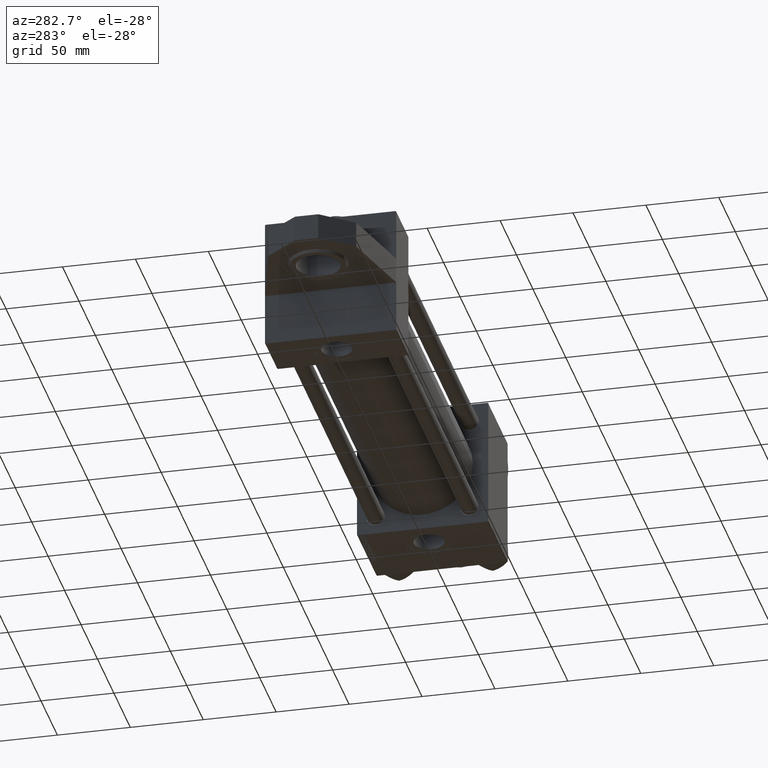
[diagram: clean part render]
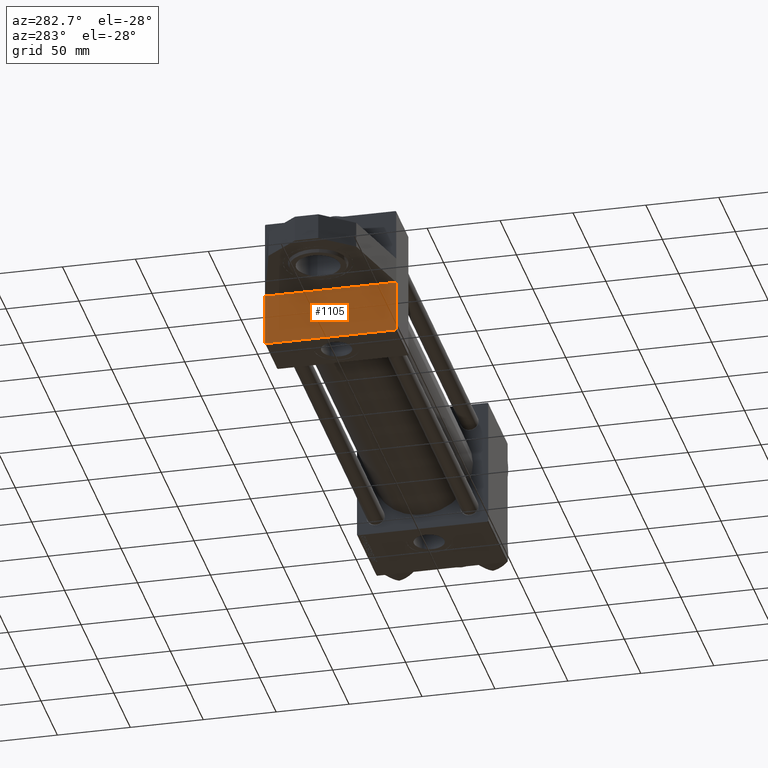
[diagram: same view with one face highlighted and labeled with its STEP entity id]
A machine part, auxiliary view. The second image highlights one B-rep face of the part: STEP entity #1105.
In plain terms, the highlighted planar face has unit normal (-1, 0, 0).
Its self-contained STEP definition (entity closure, byte-faithful):
#825 = VERTEX_POINT ( 'NONE', #5309 ) ;
#1105 = ADVANCED_FACE ( 'NONE', ( #37502 ), #8443, .T. ) ;
#3242 = LINE ( 'NONE', #47240, #3592 ) ;
#3592 = VECTOR ( 'NONE', #19765, 1000.000000000000114 ) ;
#3845 = AXIS2_PLACEMENT_3D ( 'NONE', #5244, #46016, #45222 ) ;
#5244 = CARTESIAN_POINT ( 'NONE',  ( 0.000000000000000000, 0.000000000000000000, 0.000000000000000000 ) ) ;
#5309 = CARTESIAN_POINT ( 'NONE',  ( 0.000000000000000000, -9.000000000000000000, 45.00000000000000000 ) ) ;
#8000 = EDGE_LOOP ( 'NONE', ( #26233, #24360, #14211, #41391, #45073, #42458 ) ) ;
#8144 = LINE ( 'NONE', #23364, #41107 ) ;
#8443 = PLANE ( 'NONE',  #3845 ) ;
#9010 = CARTESIAN_POINT ( 'NONE',  ( 0.000000000000000000, -45.00000000000000711, 44.49999999999997158 ) ) ;
#9890 = EDGE_CURVE ( 'NONE', #825, #22979, #23401, .T. ) ;
#10058 = EDGE_CURVE ( 'NONE', #825, #39161, #26028, .T. ) ;
#11667 = VECTOR ( 'NONE', #18561, 1000.000000000000000 ) ;
#14035 = CARTESIAN_POINT ( 'NONE',  ( 0.000000000000000000, 44.99999999999998579, 45.00000000000001421 ) ) ;
#14211 = ORIENTED_EDGE ( 'NONE', *, *, #40979, .T. ) ;
#14959 = VECTOR ( 'NONE', #30748, 1000.000000000000000 ) ;
#15406 = DIRECTION ( 'NONE',  ( 0.000000000000000000, 0.000000000000000000, -1.000000000000000000 ) ) ;
#18561 = DIRECTION ( 'NONE',  ( 0.000000000000000000, -1.000000000000000000, -1.541976423090495387E-16 ) ) ;
#18679 = CARTESIAN_POINT ( 'NONE',  ( 0.000000000000000000, -45.00000000000000000, -44.49999999999995737 ) ) ;
#19088 = DIRECTION ( 'NONE',  ( 0.000000000000000000, -1.000000000000000000, -1.541976423090495633E-16 ) ) ;
#19154 = CARTESIAN_POINT ( 'NONE',  ( 0.000000000000000000, -44.49999999999995737, -45.00000000000000000 ) ) ;
#19278 = LINE ( 'NONE', #43791, #14959 ) ;
#19747 = VECTOR ( 'NONE', #19088, 1000.000000000000000 ) ;
#19765 = DIRECTION ( 'NONE',  ( 0.000000000000000000, -0.7071067811865474617, 0.7071067811865474617 ) ) ;
#22979 = VERTEX_POINT ( 'NONE', #44238 ) ;
#23364 = CARTESIAN_POINT ( 'NONE',  ( -0.000000000000000000, -44.75000000000029843, 44.74999999999967315 ) ) ;
#23401 = LINE ( 'NONE', #47667, #50786 ) ;
#24360 = ORIENTED_EDGE ( 'NONE', *, *, #9890, .T. ) ;
#26028 = LINE ( 'NONE', #14035, #11667 ) ;
#26233 = ORIENTED_EDGE ( 'NONE', *, *, #10058, .F. ) ;
#26370 = EDGE_CURVE ( 'NONE', #40548, #34046, #3242, .T. ) ;
#30748 = DIRECTION ( 'NONE',  ( 0.000000000000000000, 7.709882115452476934E-17, -1.000000000000000000 ) ) ;
#34046 = VERTEX_POINT ( 'NONE', #18679 ) ;
#37502 = FACE_OUTER_BOUND ( 'NONE', #8000, .T. ) ;
#39161 = VERTEX_POINT ( 'NONE', #39180 ) ;
#39180 = CARTESIAN_POINT ( 'NONE',  ( 0.000000000000000000, -44.49999999999995737, 45.00000000000000000 ) ) ;
#39632 = DIRECTION ( 'NONE',  ( -0.000000000000000000, 0.7071067811865425767, 0.7071067811865524577 ) ) ;
#40548 = VERTEX_POINT ( 'NONE', #19154 ) ;
#40979 = EDGE_CURVE ( 'NONE', #22979, #40548, #47602, .T. ) ;
#41107 = VECTOR ( 'NONE', #39632, 1000.000000000000114 ) ;
#41391 = ORIENTED_EDGE ( 'NONE', *, *, #26370, .T. ) ;
#42458 = ORIENTED_EDGE ( 'NONE', *, *, #46381, .T. ) ;
#43791 = CARTESIAN_POINT ( 'NONE',  ( 0.000000000000000000, -45.00000000000000711, 45.00000000000000000 ) ) ;
#44238 = CARTESIAN_POINT ( 'NONE',  ( 0.000000000000000000, -8.999999999999987566, -44.99999999999999289 ) ) ;
#45073 = ORIENTED_EDGE ( 'NONE', *, *, #52447, .F. ) ;
#45222 = DIRECTION ( 'NONE',  ( -0.000000000000000000, 0.000000000000000000, 1.000000000000000000 ) ) ;
#46016 = DIRECTION ( 'NONE',  ( -1.000000000000000000, 0.000000000000000000, -0.000000000000000000 ) ) ;
#46381 = EDGE_CURVE ( 'NONE', #49134, #39161, #8144, .T. ) ;
#47240 = CARTESIAN_POINT ( 'NONE',  ( 0.000000000000000000, -44.74999999999998579, -44.74999999999998579 ) ) ;
#47602 = LINE ( 'NONE', #52366, #19747 ) ;
#47667 = CARTESIAN_POINT ( 'NONE',  ( 0.000000000000000000, -9.000000000000000000, 45.00000000000000000 ) ) ;
#49134 = VERTEX_POINT ( 'NONE', #9010 ) ;
#50786 = VECTOR ( 'NONE', #15406, 1000.000000000000000 ) ;
#52366 = CARTESIAN_POINT ( 'NONE',  ( 0.000000000000000000, 44.99999999999998579, -44.99999999999998579 ) ) ;
#52447 = EDGE_CURVE ( 'NONE', #49134, #34046, #19278, .T. ) ;